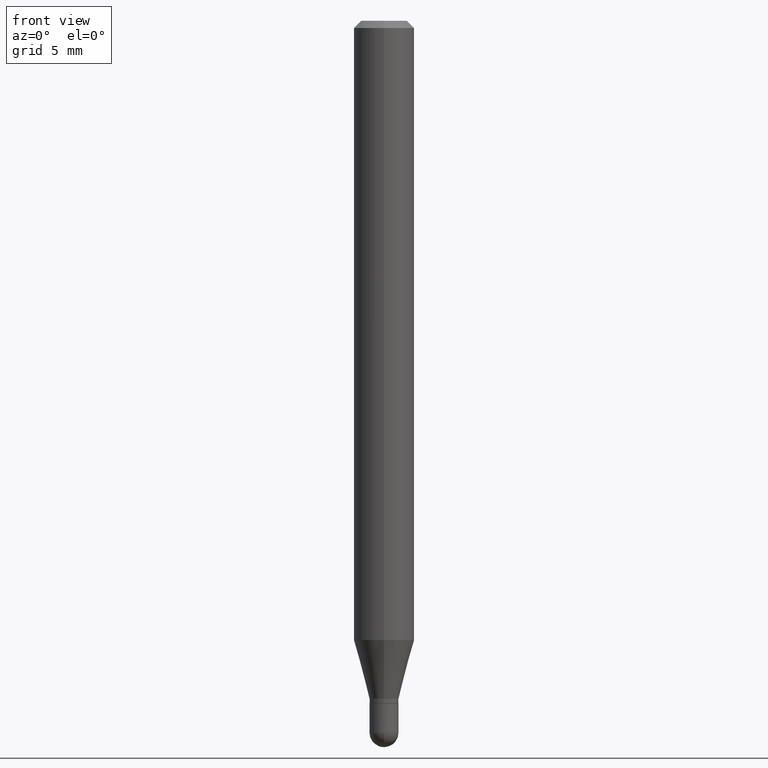
[diagram: clean part render]
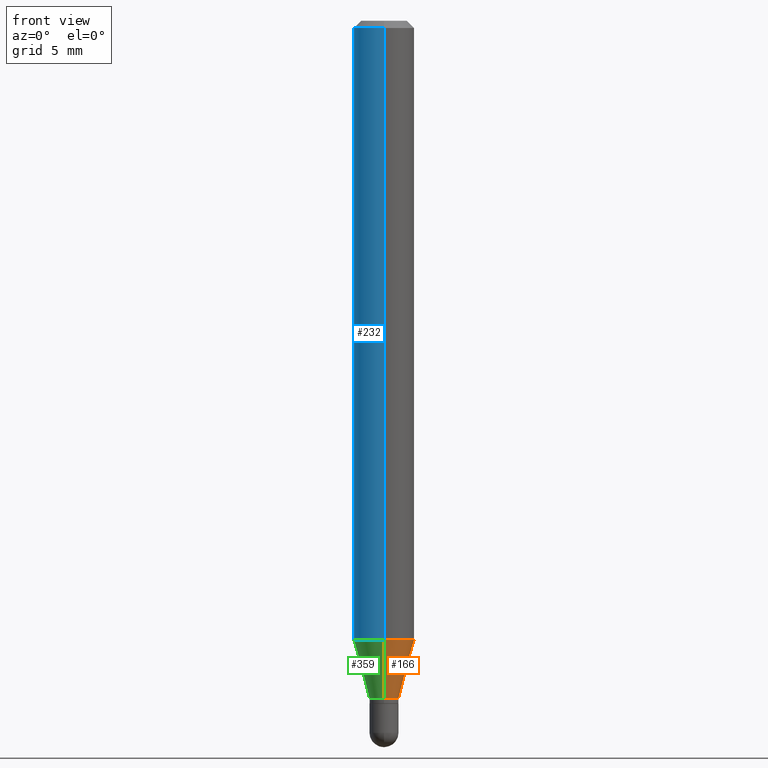
[diagram: same view with three faces highlighted in distinct colors, each labeled with its STEP entity id]
A machine part, front view with three faces highlighted in distinct colors.
Their STEP definitions:

[orange] entity #166 — the highlighted conical surface has half-angle 15 deg.
#8 = CARTESIAN_POINT ( 'NONE',  ( 3.286260152890799572E-16, 0.02999999999999531167, -1.400000000000000133 ) ) ;
#23 = DIRECTION ( 'NONE',  ( -6.982962677686265922E-15, -1.000000000000000000, 4.370956789862821150E-15 ) ) ;
#35 = CARTESIAN_POINT ( 'NONE',  ( -2.094888803305551107E-16, -0.03000000000000508510, -1.400000000000000133 ) ) ;
#42 = EDGE_CURVE ( 'NONE', #144, #75, #230, .T. ) ;
#58 = DIRECTION ( 'NONE',  ( -6.982962677686265922E-15, -1.000000000000000000, 0.000000000000000000 ) ) ;
#68 = AXIS2_PLACEMENT_3D ( 'NONE', #156, #326, #475 ) ;
#75 = VERTEX_POINT ( 'NONE', #8 ) ;
#102 = ORIENTED_EDGE ( 'NONE', *, *, #386, .F. ) ;
#112 = CARTESIAN_POINT ( 'NONE',  ( 2.131628207280656699E-16, 0.02999999999999530820, -1.400000000000000133 ) ) ;
#117 = ORIENTED_EDGE ( 'NONE', *, *, #42, .T. ) ;
#128 = CIRCLE ( 'NONE', #296, 0.06250000000000000000 ) ;
#130 = DIRECTION ( 'NONE',  ( -2.445462691550089435E-29, 3.491490095348556460E-15, 1.000000000000000000 ) ) ;
#139 = VERTEX_POINT ( 'NONE', #243 ) ;
#144 = VERTEX_POINT ( 'NONE', #334 ) ;
#156 = CARTESIAN_POINT ( 'NONE',  ( 3.423647768170125602E-29, -4.888086133487979280E-15, -1.400000000000000133 ) ) ;
#157 = EDGE_CURVE ( 'NONE', #139, #237, #128, .T. ) ;
#166 = ADVANCED_FACE ( 'NONE', ( #182 ), #249, .T. ) ;
#182 = FACE_OUTER_BOUND ( 'NONE', #478, .T. ) ;
#184 = LINE ( 'NONE', #112, #194 ) ;
#194 = VECTOR ( 'NONE', #423, 39.37007874015748143 ) ;
#221 = CARTESIAN_POINT ( 'NONE',  ( 4.440892098500936776E-16, 0.06249999999999551747, -1.278708348754013402 ) ) ;
#230 = CIRCLE ( 'NONE', #68, 0.03000000000000019665 ) ;
#231 = AXIS2_PLACEMENT_3D ( 'NONE', #415, #486, #58 ) ;
#236 = DIRECTION ( 'NONE',  ( -1.807323732225335267E-15, -0.2588190451025189631, 0.9659258262890687563 ) ) ;
#237 = VERTEX_POINT ( 'NONE', #221 ) ;
#243 = CARTESIAN_POINT ( 'NONE',  ( -4.364351673553605094E-16, -0.06250000000000449640, -1.278708348754012736 ) ) ;
#249 = CONICAL_SURFACE ( 'NONE', #231, 0.03000000000000019665, 0.2617993877991510177 ) ;
#296 = AXIS2_PLACEMENT_3D ( 'NONE', #484, #130, #23 ) ;
#306 = EDGE_CURVE ( 'NONE', #75, #237, #184, .T. ) ;
#313 = ORIENTED_EDGE ( 'NONE', *, *, #157, .F. ) ;
#321 = ORIENTED_EDGE ( 'NONE', *, *, #306, .T. ) ;
#326 = DIRECTION ( 'NONE',  ( -2.445462691550089435E-29, 3.491490095348556460E-15, 1.000000000000000000 ) ) ;
#334 = CARTESIAN_POINT ( 'NONE',  ( -2.094888803305551107E-16, -0.03000000000000508510, -1.400000000000000133 ) ) ;
#386 = EDGE_CURVE ( 'NONE', #144, #139, #499, .T. ) ;
#415 = CARTESIAN_POINT ( 'NONE',  ( 3.423647768170125602E-29, -4.888086133487979280E-15, -1.400000000000000133 ) ) ;
#423 = DIRECTION ( 'NONE',  ( 1.839019923739605443E-15, 0.2588190451025256800, 0.9659258262890669799 ) ) ;
#439 = VECTOR ( 'NONE', #236, 39.37007874015748854 ) ;
#475 = DIRECTION ( 'NONE',  ( -6.982962677686265922E-15, -1.000000000000000000, 0.000000000000000000 ) ) ;
#478 = EDGE_LOOP ( 'NONE', ( #117, #321, #313, #102 ) ) ;
#484 = CARTESIAN_POINT ( 'NONE',  ( 3.127033560251559026E-29, -4.464597534514144179E-15, -1.278708348754013180 ) ) ;
#486 = DIRECTION ( 'NONE',  ( -2.445462691550089435E-29, 3.491490095348556460E-15, 1.000000000000000000 ) ) ;
#499 = LINE ( 'NONE', #35, #439 ) ;

[blue] entity #232 — the highlighted cylindrical surface (edge-blend (fillet) strip) has radius 1.5875 mm, axis along (-0, 0, 1).
#47 = VECTOR ( 'NONE', #186, 39.37007874015748143 ) ;
#54 = FACE_OUTER_BOUND ( 'NONE', #458, .T. ) ;
#64 = VERTEX_POINT ( 'NONE', #242 ) ;
#69 = AXIS2_PLACEMENT_3D ( 'NONE', #170, #305, #453 ) ;
#74 = LINE ( 'NONE', #394, #223 ) ;
#84 = DIRECTION ( 'NONE',  ( -2.445462691550089435E-29, 3.491490095348556460E-15, 1.000000000000000000 ) ) ;
#90 = EDGE_CURVE ( 'NONE', #235, #64, #434, .T. ) ;
#133 = DIRECTION ( 'NONE',  ( -2.445462691550089435E-29, 3.491490095348556460E-15, 1.000000000000000000 ) ) ;
#139 = VERTEX_POINT ( 'NONE', #243 ) ;
#148 = ORIENTED_EDGE ( 'NONE', *, *, #396, .F. ) ;
#170 = CARTESIAN_POINT ( 'NONE',  ( 0.000000000000000000, 0.000000000000000000, 0.000000000000000000 ) ) ;
#186 = DIRECTION ( 'NONE',  ( -2.445462691550089435E-29, 3.491490095348556460E-15, 1.000000000000000000 ) ) ;
#216 = CYLINDRICAL_SURFACE ( 'NONE', #69, 0.06250000000000000000 ) ;
#221 = CARTESIAN_POINT ( 'NONE',  ( 4.440892098500936776E-16, 0.06249999999999551747, -1.278708348754013402 ) ) ;
#223 = VECTOR ( 'NONE', #312, 39.37007874015748143 ) ;
#232 = ADVANCED_FACE ( 'NONE', ( #54 ), #216, .T. ) ;
#235 = VERTEX_POINT ( 'NONE', #265 ) ;
#237 = VERTEX_POINT ( 'NONE', #221 ) ;
#242 = CARTESIAN_POINT ( 'NONE',  ( -4.364351673553912750E-16, -0.06250000000000005551, -0.01499999999999979128 ) ) ;
#243 = CARTESIAN_POINT ( 'NONE',  ( -4.364351673553605094E-16, -0.06250000000000449640, -1.278708348754012736 ) ) ;
#257 = CARTESIAN_POINT ( 'NONE',  ( 3.127033560251559026E-29, -4.464597534514144179E-15, -1.278708348754013180 ) ) ;
#260 = ORIENTED_EDGE ( 'NONE', *, *, #342, .T. ) ;
#265 = CARTESIAN_POINT ( 'NONE',  ( 4.440892098500940720E-16, 0.06249999999999995143, -0.01500000000000022669 ) ) ;
#273 = EDGE_CURVE ( 'NONE', #237, #139, #482, .T. ) ;
#305 = DIRECTION ( 'NONE',  ( -2.445462691550089435E-29, 3.491490095348556460E-15, 1.000000000000000000 ) ) ;
#307 = CARTESIAN_POINT ( 'NONE',  ( -4.364351673553916201E-16, -0.06250000000000000000, 2.182181309592847787E-16 ) ) ;
#310 = ORIENTED_EDGE ( 'NONE', *, *, #90, .F. ) ;
#312 = DIRECTION ( 'NONE',  ( -2.445462691550089435E-29, 3.491490095348556460E-15, 1.000000000000000000 ) ) ;
#342 = EDGE_CURVE ( 'NONE', #139, #64, #431, .T. ) ;
#356 = ORIENTED_EDGE ( 'NONE', *, *, #273, .T. ) ;
#365 = DIRECTION ( 'NONE',  ( -6.982962677686265922E-15, -1.000000000000000000, 3.483106191921935554E-15 ) ) ;
#394 = CARTESIAN_POINT ( 'NONE',  ( 4.440892098500625669E-16, 0.06250000000000000000, -2.182181309592847787E-16 ) ) ;
#396 = EDGE_CURVE ( 'NONE', #237, #235, #74, .T. ) ;
#428 = AXIS2_PLACEMENT_3D ( 'NONE', #257, #133, #452 ) ;
#431 = LINE ( 'NONE', #307, #47 ) ;
#433 = CARTESIAN_POINT ( 'NONE',  ( 3.668194037325136413E-31, -5.237235143022838535E-17, -0.01500000000000000812 ) ) ;
#434 = CIRCLE ( 'NONE', #495, 0.06250000000000000000 ) ;
#452 = DIRECTION ( 'NONE',  ( -6.982962677686265922E-15, -1.000000000000000000, 4.370956789862821150E-15 ) ) ;
#453 = DIRECTION ( 'NONE',  ( -6.982962677686265922E-15, -1.000000000000000000, 3.491490095348556460E-15 ) ) ;
#458 = EDGE_LOOP ( 'NONE', ( #148, #356, #260, #310 ) ) ;
#482 = CIRCLE ( 'NONE', #428, 0.06250000000000000000 ) ;
#495 = AXIS2_PLACEMENT_3D ( 'NONE', #433, #84, #365 ) ;

[green] entity #359 — the highlighted conical surface has half-angle 15 deg.
#8 = CARTESIAN_POINT ( 'NONE',  ( 3.286260152890799572E-16, 0.02999999999999531167, -1.400000000000000133 ) ) ;
#31 = DIRECTION ( 'NONE',  ( -6.982962677686265922E-15, -1.000000000000000000, 0.000000000000000000 ) ) ;
#35 = CARTESIAN_POINT ( 'NONE',  ( -2.094888803305551107E-16, -0.03000000000000508510, -1.400000000000000133 ) ) ;
#75 = VERTEX_POINT ( 'NONE', #8 ) ;
#98 = ORIENTED_EDGE ( 'NONE', *, *, #273, .F. ) ;
#112 = CARTESIAN_POINT ( 'NONE',  ( 2.131628207280656699E-16, 0.02999999999999530820, -1.400000000000000133 ) ) ;
#120 = EDGE_CURVE ( 'NONE', #75, #144, #278, .T. ) ;
#133 = DIRECTION ( 'NONE',  ( -2.445462691550089435E-29, 3.491490095348556460E-15, 1.000000000000000000 ) ) ;
#139 = VERTEX_POINT ( 'NONE', #243 ) ;
#144 = VERTEX_POINT ( 'NONE', #334 ) ;
#154 = ORIENTED_EDGE ( 'NONE', *, *, #386, .T. ) ;
#167 = DIRECTION ( 'NONE',  ( -6.982962677686265922E-15, -1.000000000000000000, 0.000000000000000000 ) ) ;
#169 = CONICAL_SURFACE ( 'NONE', #464, 0.03000000000000019665, 0.2617993877991510177 ) ;
#179 = AXIS2_PLACEMENT_3D ( 'NONE', #293, #438, #167 ) ;
#183 = EDGE_LOOP ( 'NONE', ( #505, #227, #154, #98 ) ) ;
#184 = LINE ( 'NONE', #112, #194 ) ;
#194 = VECTOR ( 'NONE', #423, 39.37007874015748143 ) ;
#221 = CARTESIAN_POINT ( 'NONE',  ( 4.440892098500936776E-16, 0.06249999999999551747, -1.278708348754013402 ) ) ;
#227 = ORIENTED_EDGE ( 'NONE', *, *, #120, .T. ) ;
#233 = DIRECTION ( 'NONE',  ( -2.445462691550089435E-29, 3.491490095348556460E-15, 1.000000000000000000 ) ) ;
#236 = DIRECTION ( 'NONE',  ( -1.807323732225335267E-15, -0.2588190451025189631, 0.9659258262890687563 ) ) ;
#237 = VERTEX_POINT ( 'NONE', #221 ) ;
#243 = CARTESIAN_POINT ( 'NONE',  ( -4.364351673553605094E-16, -0.06250000000000449640, -1.278708348754012736 ) ) ;
#257 = CARTESIAN_POINT ( 'NONE',  ( 3.127033560251559026E-29, -4.464597534514144179E-15, -1.278708348754013180 ) ) ;
#273 = EDGE_CURVE ( 'NONE', #237, #139, #482, .T. ) ;
#278 = CIRCLE ( 'NONE', #179, 0.03000000000000019665 ) ;
#293 = CARTESIAN_POINT ( 'NONE',  ( 3.423647768170125602E-29, -4.888086133487979280E-15, -1.400000000000000133 ) ) ;
#306 = EDGE_CURVE ( 'NONE', #75, #237, #184, .T. ) ;
#334 = CARTESIAN_POINT ( 'NONE',  ( -2.094888803305551107E-16, -0.03000000000000508510, -1.400000000000000133 ) ) ;
#359 = ADVANCED_FACE ( 'NONE', ( #392 ), #169, .T. ) ;
#386 = EDGE_CURVE ( 'NONE', #144, #139, #499, .T. ) ;
#392 = FACE_OUTER_BOUND ( 'NONE', #183, .T. ) ;
#423 = DIRECTION ( 'NONE',  ( 1.839019923739605443E-15, 0.2588190451025256800, 0.9659258262890669799 ) ) ;
#428 = AXIS2_PLACEMENT_3D ( 'NONE', #257, #133, #452 ) ;
#438 = DIRECTION ( 'NONE',  ( -2.445462691550089435E-29, 3.491490095348556460E-15, 1.000000000000000000 ) ) ;
#439 = VECTOR ( 'NONE', #236, 39.37007874015748854 ) ;
#452 = DIRECTION ( 'NONE',  ( -6.982962677686265922E-15, -1.000000000000000000, 4.370956789862821150E-15 ) ) ;
#464 = AXIS2_PLACEMENT_3D ( 'NONE', #502, #233, #31 ) ;
#482 = CIRCLE ( 'NONE', #428, 0.06250000000000000000 ) ;
#499 = LINE ( 'NONE', #35, #439 ) ;
#502 = CARTESIAN_POINT ( 'NONE',  ( 3.423647768170125602E-29, -4.888086133487979280E-15, -1.400000000000000133 ) ) ;
#505 = ORIENTED_EDGE ( 'NONE', *, *, #306, .F. ) ;